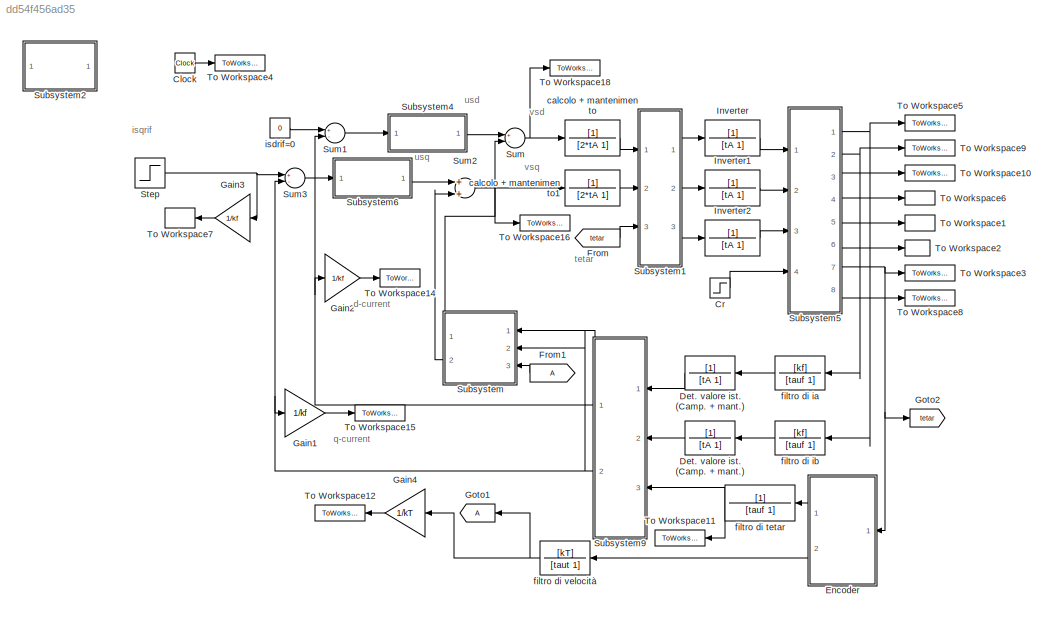
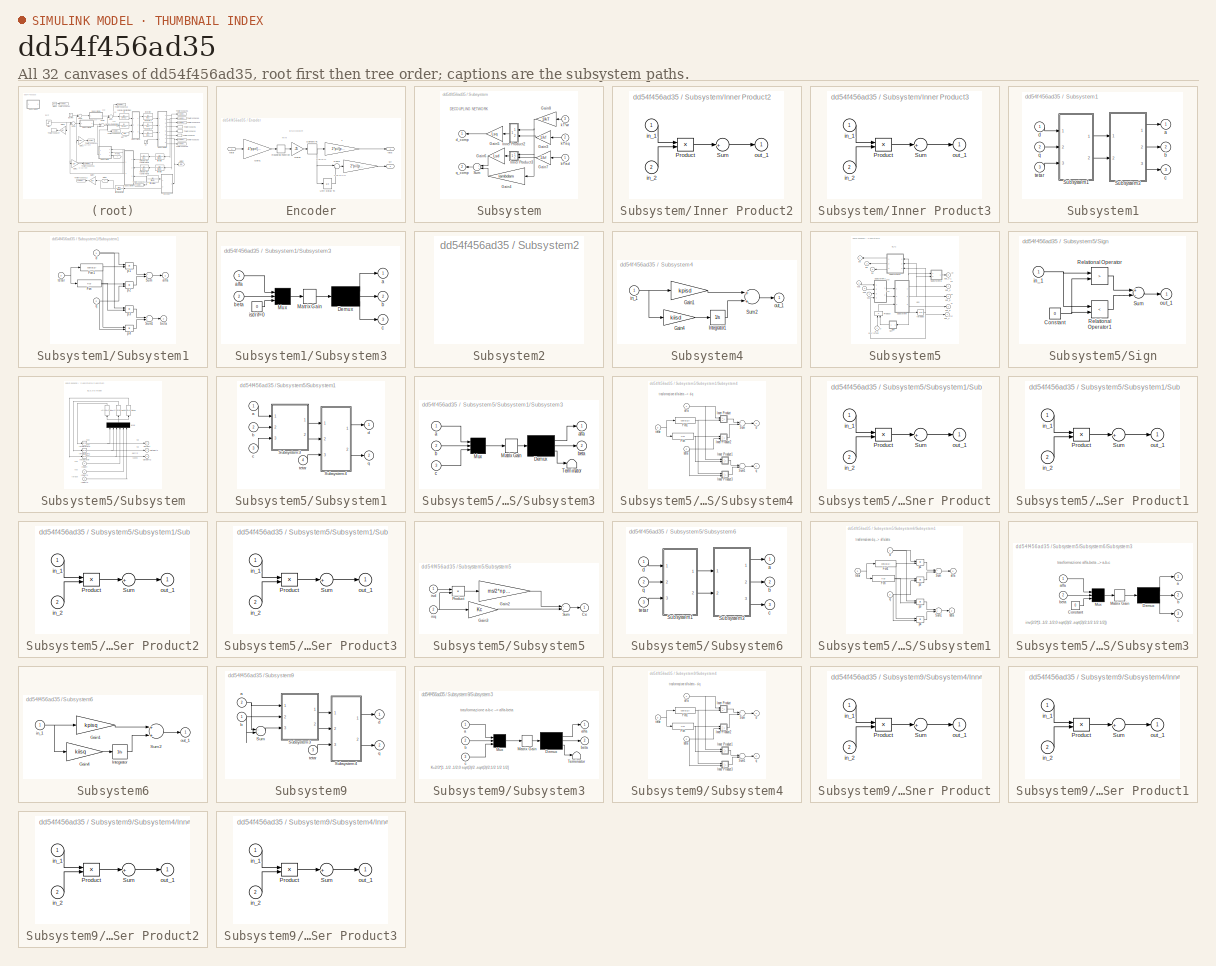
[diagram: thumbnail index - all 32 canvases of the model, root first then tree order]
MODEL slx_dd54f456ad35
KIND model
CONFIG AbsTol = 1e-4
CONFIG EnableMultiTasking = off
CONFIG FixedStep = fixed_step_size
CONFIG MaxStep = .1*Tc
CONFIG MinStep = auto
CONFIG RelTol = 1e-4
CONFIG SampleTimeConstraint = Unconstrained
CONFIG Solver = ode4
CONFIG SolverName = ode4
CONFIG StartTime = 0.0
CONFIG StopTime = 0.02
BLOCK [Clock] Clock
  Decimation = 1
BLOCK [Step] Cr
  After = 0
  SampleTime = 0
  Time = 0
BLOCK [TransferFcn] Det. valore ist. (Camp. + mant.)
  Denominator = [tA 1]
BLOCK [TransferFcn] Det. valore ist. (Camp. + mant.) 
  Denominator = [tA 1]
BLOCK [SubSystem] Encoder
  Ports = [1, 2]
  RequestExecContextInheritance = off
BLOCK [Gain] Encoder/ 
  Gain = 2*pi/(ppr*Tc)
BLOCK [Gain] Encoder/ 1
  Gain = 2*pi/(ppr)
BLOCK [Gain] Encoder/Gain1
  Gain = 4*ppr/(2*pi)
BLOCK [Gain] Encoder/Gain6
  Gain = .25
BLOCK [Rounding] Encoder/Rounding Function
BLOCK [ZeroOrderHold] Encoder/Sample Tc
  SampleTime = Tc
BLOCK [Sum] Encoder/Sum2
  IconShape = round
  Inputs = |+-
  Ports = [2, 1]
BLOCK [UnitDelay] Encoder/Unit Delay Tc
  SampleTime = Tc
BLOCK [Outport] Encoder/teta
  IconDisplay = Port number
BLOCK [Inport] Encoder/tetar
  IconDisplay = Port number
BLOCK [Outport] Encoder/wr
  IconDisplay = Port number
  Port = 2
BLOCK [From] From
  CloseFcn = tagdialog Close
  GotoTag = tetar
  IconDisplay = Signal name
BLOCK [From] From1
  CloseFcn = tagdialog Close
  IconDisplay = Signal name
BLOCK [Gain] Gain1
  Gain = 1/kf
BLOCK [Gain] Gain2
  Gain = 1/kf
BLOCK [Gain] Gain3
  Gain = 1/kf
BLOCK [Gain] Gain4
  Gain = 1/kT
BLOCK [Goto] Goto1
BLOCK [Goto] Goto2
  GotoTag = tetar
BLOCK [TransferFcn] Inverter
  Denominator = [tA 1]
BLOCK [TransferFcn] Inverter1
  Denominator = [tA 1]
BLOCK [TransferFcn] Inverter2
  Denominator = [tA 1]
BLOCK [Step] Step
  After = 0.6*kf
  SampleTime = 0
  Time = 0
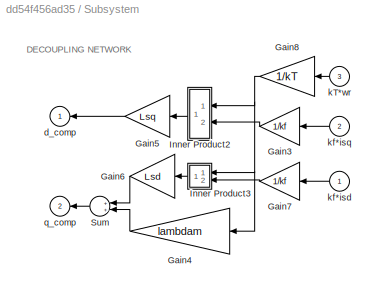
BLOCK [SubSystem] Subsystem
  Ports = [3, 2]
  RequestExecContextInheritance = off
  ShowPortLabels = none
BLOCK [Gain] Subsystem/Gain3
  Gain = 1/kf
BLOCK [Gain] Subsystem/Gain4
  Gain = lambdam
BLOCK [Gain] Subsystem/Gain5
  Gain = Lsq
BLOCK [Gain] Subsystem/Gain6
  Gain = Lsd
BLOCK [Gain] Subsystem/Gain7
  Gain = 1/kf
BLOCK [Gain] Subsystem/Gain8
  Gain = 1/kT
BLOCK [SubSystem] Subsystem/Inner Product2
  Ports = [2, 1]
  RequestExecContextInheritance = off
  ShowPortLabels = none
BLOCK [Product] Subsystem/Inner Product2/Product
  Ports = [2, 1]
  RndMeth = Floor
BLOCK [Sum] Subsystem/Inner Product2/Sum
  Inputs = +
  Ports = [1, 1]
BLOCK [Inport] Subsystem/Inner Product2/in_1
  IconDisplay = Port number
BLOCK [Inport] Subsystem/Inner Product2/in_2
  IconDisplay = Port number
  Port = 2
BLOCK [Outport] Subsystem/Inner Product2/out_1
  IconDisplay = Port number
BLOCK [SubSystem] Subsystem/Inner Product3
  Ports = [2, 1]
  RequestExecContextInheritance = off
  ShowPortLabels = none
BLOCK [Product] Subsystem/Inner Product3/Product
  Ports = [2, 1]
  RndMeth = Floor
BLOCK [Sum] Subsystem/Inner Product3/Sum
  Inputs = +
  Ports = [1, 1]
BLOCK [Inport] Subsystem/Inner Product3/in_1
  IconDisplay = Port number
BLOCK [Inport] Subsystem/Inner Product3/in_2
  IconDisplay = Port number
  Port = 2
BLOCK [Outport] Subsystem/Inner Product3/out_1
  IconDisplay = Port number
BLOCK [Sum] Subsystem/Sum
  Ports = [2, 1]
BLOCK [Outport] Subsystem/d_comp
  IconDisplay = Port number
BLOCK [Inport] Subsystem/kT*wr
  IconDisplay = Port number
  Port = 3
BLOCK [Inport] Subsystem/kf*isd
  IconDisplay = Port number
BLOCK [Inport] Subsystem/kf*isq
  IconDisplay = Port number
  Port = 2
BLOCK [Outport] Subsystem/q_comp
  IconDisplay = Port number
  Port = 2
BLOCK [SubSystem] Subsystem1
  Ports = [3, 3]
  RequestExecContextInheritance = off
  ShowPortLabels = none
BLOCK [SubSystem] Subsystem1/Subsystem1
  Ports = [3, 2]
  RequestExecContextInheritance = off
  ShowPortLabels = none
BLOCK [Fcn] Subsystem1/Subsystem1/Fcn
BLOCK [Fcn] Subsystem1/Subsystem1/Fcn1
  Expr = cos(u[1])
BLOCK [Sum] Subsystem1/Subsystem1/Sum
  Inputs = +-
  Ports = [2, 1]
BLOCK [Sum] Subsystem1/Subsystem1/Sum1
  Ports = [2, 1]
BLOCK [Outport] Subsystem1/Subsystem1/alfa
  IconDisplay = Port number
BLOCK [Outport] Subsystem1/Subsystem1/beta
  IconDisplay = Port number
  Port = 2
BLOCK [Inport] Subsystem1/Subsystem1/d
  IconDisplay = Port number
BLOCK [Product] Subsystem1/Subsystem1/p1
  Ports = [2, 1]
  RndMeth = Floor
BLOCK [Product] Subsystem1/Subsystem1/p2
  Ports = [2, 1]
  RndMeth = Floor
BLOCK [Product] Subsystem1/Subsystem1/p3
  Ports = [2, 1]
  RndMeth = Floor
BLOCK [Product] Subsystem1/Subsystem1/p4
  Ports = [2, 1]
  RndMeth = Floor
BLOCK [Inport] Subsystem1/Subsystem1/q
  IconDisplay = Port number
  Port = 2
BLOCK [Inport] Subsystem1/Subsystem1/tetar 
  IconDisplay = Port number
  Port = 3
BLOCK [SubSystem] Subsystem1/Subsystem3
  Ports = [2, 3]
  RequestExecContextInheritance = off
  ShowPortLabels = none
BLOCK [Demux] Subsystem1/Subsystem3/Demux
  Outputs = 3
  Ports = [1, 3]
BLOCK [StateSpace] Subsystem1/Subsystem3/Matrix Gain
  A = []
  B = []
  C = []
  D = K
  InitialCondition = 0
  Ports = [1, 1]
BLOCK [Mux] Subsystem1/Subsystem3/Mux
  Inputs = 3
  Ports = [3, 1]
BLOCK [Outport] Subsystem1/Subsystem3/a
  IconDisplay = Port number
BLOCK [Inport] Subsystem1/Subsystem3/alfa
  IconDisplay = Port number
BLOCK [Outport] Subsystem1/Subsystem3/b
  IconDisplay = Port number
  Port = 2
BLOCK [Inport] Subsystem1/Subsystem3/beta
  IconDisplay = Port number
  Port = 2
BLOCK [Outport] Subsystem1/Subsystem3/c 
  IconDisplay = Port number
  Port = 3
BLOCK [Constant] Subsystem1/Subsystem3/isdrif=0
  Value = 0
BLOCK [Outport] Subsystem1/a
  IconDisplay = Port number
BLOCK [Outport] Subsystem1/b
  IconDisplay = Port number
  Port = 2
BLOCK [Outport] Subsystem1/c
  IconDisplay = Port number
  Port = 3
BLOCK [Inport] Subsystem1/d
  IconDisplay = Port number
BLOCK [Inport] Subsystem1/q
  IconDisplay = Port number
  Port = 2
BLOCK [Inport] Subsystem1/tetar
  IconDisplay = Port number
  Port = 3
BLOCK [SubSystem] Subsystem2
  OpenFcn = BLAC_1d
  Ports = []
  RequestExecContextInheritance = off
  ShowPortLabels = none
BLOCK [SubSystem] Subsystem4
  Ports = [1, 1]
  RequestExecContextInheritance = off
  ShowPortLabels = none
BLOCK [Gain] Subsystem4/Gain1
  Gain = kpisd
BLOCK [Gain] Subsystem4/Gain4
  Gain = kiisd
BLOCK [Integrator] Subsystem4/Integrator1
  Ports = [1, 1]
BLOCK [Sum] Subsystem4/Sum2
  Ports = [2, 1]
BLOCK [Inport] Subsystem4/in_1
  IconDisplay = Port number
BLOCK [Outport] Subsystem4/out_1
  IconDisplay = Port number
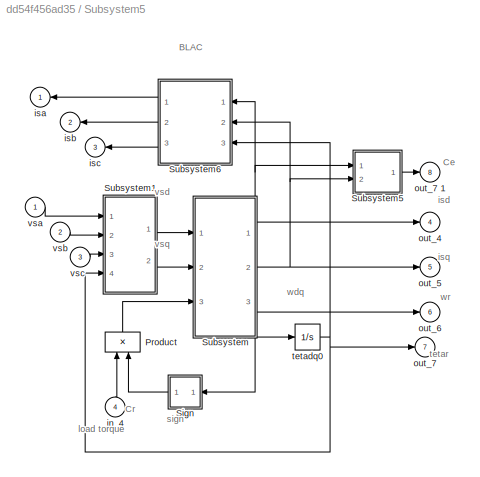
BLOCK [SubSystem] Subsystem5
  Ports = [4, 8]
  RequestExecContextInheritance = off
  ShowPortLabels = none
BLOCK [Product] Subsystem5/Product
  Ports = [2, 1]
  RndMeth = Floor
BLOCK [SubSystem] Subsystem5/Sign
  Ports = [1, 1]
  RequestExecContextInheritance = off
  ShowPortLabels = none
BLOCK [Constant] Subsystem5/Sign/Constant
  Value = 0
BLOCK [RelationalOperator] Subsystem5/Sign/Relational Operator
  Operator = >
  Ports = [2, 1]
BLOCK [RelationalOperator] Subsystem5/Sign/Relational Operator1
  Operator = <
  Ports = [2, 1]
BLOCK [Sum] Subsystem5/Sign/Sum
  Inputs = +-
  Ports = [2, 1]
BLOCK [Inport] Subsystem5/Sign/in_1
  IconDisplay = Port number
BLOCK [Outport] Subsystem5/Sign/out_1
  IconDisplay = Port number
BLOCK [SubSystem] Subsystem5/Subsystem
  Ports = [3, 3]
  RequestExecContextInheritance = off
  ShowPortLabels = none
BLOCK [Fcn] Subsystem5/Subsystem/Fcn
  Expr = A1*u[1]+A2*u[2]*u[3]+A3*u[4]
BLOCK [Fcn] Subsystem5/Subsystem/Fcn1
  Expr = A4*u[1]*u[3]+A5*u[2]+A6*u[3]+A7*u[5]
BLOCK [Fcn] Subsystem5/Subsystem/Fcn2
  Expr = A8*u[2]+A9*u[1]*u[2]+A10*u[3]+A11*u[6]
BLOCK [Inport] Subsystem5/Subsystem/Inport
  IconDisplay = Port number
BLOCK [Inport] Subsystem5/Subsystem/Inport1
  IconDisplay = Port number
  Port = 2
BLOCK [Inport] Subsystem5/Subsystem/Inport2
  IconDisplay = Port number
  Port = 3
BLOCK [Integrator] Subsystem5/Subsystem/Integrator
  InitialCondition = wdq0
  Ports = [1, 1]
BLOCK [Integrator] Subsystem5/Subsystem/Integrator1
  InitialCondition = isq0
  Ports = [1, 1]
BLOCK [Integrator] Subsystem5/Subsystem/Integrator2
  InitialCondition = isd0
  Ports = [1, 1]
BLOCK [Mux] Subsystem5/Subsystem/Mux
  Inputs = 6
  Ports = [6, 1]
BLOCK [Outport] Subsystem5/Subsystem/Outport
  IconDisplay = Port number
BLOCK [Outport] Subsystem5/Subsystem/Outport1
  IconDisplay = Port number
  Port = 2
BLOCK [Outport] Subsystem5/Subsystem/Outport2
  IconDisplay = Port number
  Port = 3
BLOCK [SubSystem] Subsystem5/Subsystem1
  Ports = [4, 2]
  RequestExecContextInheritance = off
  ShowPortLabels = none
BLOCK [SubSystem] Subsystem5/Subsystem1/Subsystem3
  Ports = [3, 2]
  RequestExecContextInheritance = off
  ShowPortLabels = none
BLOCK [Demux] Subsystem5/Subsystem1/Subsystem3/Demux
  Outputs = 3
  Ports = [1, 3]
BLOCK [StateSpace] Subsystem5/Subsystem1/Subsystem3/Matrix Gain
  A = []
  B = []
  C = []
  D = K
  InitialCondition = 0
  Ports = [1, 1]
BLOCK [Mux] Subsystem5/Subsystem1/Subsystem3/Mux
  Inputs = 3
  Ports = [3, 1]
BLOCK [Terminator] Subsystem5/Subsystem1/Subsystem3/Terminator
BLOCK [Inport] Subsystem5/Subsystem1/Subsystem3/a
  IconDisplay = Port number
BLOCK [Outport] Subsystem5/Subsystem1/Subsystem3/alfa
  IconDisplay = Port number
BLOCK [Inport] Subsystem5/Subsystem1/Subsystem3/b
  IconDisplay = Port number
  Port = 2
BLOCK [Outport] Subsystem5/Subsystem1/Subsystem3/beta
  IconDisplay = Port number
  Port = 2
BLOCK [Inport] Subsystem5/Subsystem1/Subsystem3/c
  IconDisplay = Port number
  Port = 3
BLOCK [SubSystem] Subsystem5/Subsystem1/Subsystem4
  Ports = [3, 2]
  RequestExecContextInheritance = off
  ShowPortLabels = none
BLOCK [Fcn] Subsystem5/Subsystem1/Subsystem4/Fcn
BLOCK [Fcn] Subsystem5/Subsystem1/Subsystem4/Fcn1
  Expr = cos(u[1])
BLOCK [SubSystem] Subsystem5/Subsystem1/Subsystem4/Inner Product
  Ports = [2, 1]
  RequestExecContextInheritance = off
  ShowPortLabels = none
BLOCK [Product] Subsystem5/Subsystem1/Subsystem4/Inner Product/Product
  Ports = [2, 1]
  RndMeth = Floor
BLOCK [Sum] Subsystem5/Subsystem1/Subsystem4/Inner Product/Sum
  Inputs = +
  Ports = [1, 1]
BLOCK [Inport] Subsystem5/Subsystem1/Subsystem4/Inner Product/in_1
  IconDisplay = Port number
BLOCK [Inport] Subsystem5/Subsystem1/Subsystem4/Inner Product/in_2
  IconDisplay = Port number
  Port = 2
BLOCK [Outport] Subsystem5/Subsystem1/Subsystem4/Inner Product/out_1
  IconDisplay = Port number
BLOCK [SubSystem] Subsystem5/Subsystem1/Subsystem4/Inner Product1
  Ports = [2, 1]
  RequestExecContextInheritance = off
  ShowPortLabels = none
BLOCK [Product] Subsystem5/Subsystem1/Subsystem4/Inner Product1/Product
  Ports = [2, 1]
  RndMeth = Floor
BLOCK [Sum] Subsystem5/Subsystem1/Subsystem4/Inner Product1/Sum
  Inputs = +
  Ports = [1, 1]
BLOCK [Inport] Subsystem5/Subsystem1/Subsystem4/Inner Product1/in_1
  IconDisplay = Port number
BLOCK [Inport] Subsystem5/Subsystem1/Subsystem4/Inner Product1/in_2
  IconDisplay = Port number
  Port = 2
BLOCK [Outport] Subsystem5/Subsystem1/Subsystem4/Inner Product1/out_1
  IconDisplay = Port number
BLOCK [SubSystem] Subsystem5/Subsystem1/Subsystem4/Inner Product2
  Ports = [2, 1]
  RequestExecContextInheritance = off
  ShowPortLabels = none
BLOCK [Product] Subsystem5/Subsystem1/Subsystem4/Inner Product2/Product
  Ports = [2, 1]
  RndMeth = Floor
BLOCK [Sum] Subsystem5/Subsystem1/Subsystem4/Inner Product2/Sum
  Inputs = +
  Ports = [1, 1]
BLOCK [Inport] Subsystem5/Subsystem1/Subsystem4/Inner Product2/in_1
  IconDisplay = Port number
BLOCK [Inport] Subsystem5/Subsystem1/Subsystem4/Inner Product2/in_2
  IconDisplay = Port number
  Port = 2
BLOCK [Outport] Subsystem5/Subsystem1/Subsystem4/Inner Product2/out_1
  IconDisplay = Port number
BLOCK [SubSystem] Subsystem5/Subsystem1/Subsystem4/Inner Product3
  Ports = [2, 1]
  RequestExecContextInheritance = off
  ShowPortLabels = none
BLOCK [Product] Subsystem5/Subsystem1/Subsystem4/Inner Product3/Product
  Ports = [2, 1]
  RndMeth = Floor
BLOCK [Sum] Subsystem5/Subsystem1/Subsystem4/Inner Product3/Sum
  Inputs = +
  Ports = [1, 1]
BLOCK [Inport] Subsystem5/Subsystem1/Subsystem4/Inner Product3/in_1
  IconDisplay = Port number
BLOCK [Inport] Subsystem5/Subsystem1/Subsystem4/Inner Product3/in_2
  IconDisplay = Port number
  Port = 2
BLOCK [Outport] Subsystem5/Subsystem1/Subsystem4/Inner Product3/out_1
  IconDisplay = Port number
BLOCK [Sum] Subsystem5/Subsystem1/Subsystem4/Sum
  Ports = [2, 1]
BLOCK [Sum] Subsystem5/Subsystem1/Subsystem4/Sum1
  Inputs = -+
  Ports = [2, 1]
BLOCK [Inport] Subsystem5/Subsystem1/Subsystem4/alfa
  IconDisplay = Port number
BLOCK [Inport] Subsystem5/Subsystem1/Subsystem4/beta
  IconDisplay = Port number
  Port = 2
BLOCK [Outport] Subsystem5/Subsystem1/Subsystem4/d
  IconDisplay = Port number
BLOCK [Outport] Subsystem5/Subsystem1/Subsystem4/q
  IconDisplay = Port number
  Port = 2
BLOCK [Inport] Subsystem5/Subsystem1/Subsystem4/tetar 
  IconDisplay = Port number
  Port = 3
BLOCK [Inport] Subsystem5/Subsystem1/a
  IconDisplay = Port number
BLOCK [Inport] Subsystem5/Subsystem1/b
  IconDisplay = Port number
  Port = 2
BLOCK [Inport] Subsystem5/Subsystem1/c
  IconDisplay = Port number
  Port = 3
BLOCK [Outport] Subsystem5/Subsystem1/d
  IconDisplay = Port number
BLOCK [Outport] Subsystem5/Subsystem1/q
  IconDisplay = Port number
  Port = 2
BLOCK [Inport] Subsystem5/Subsystem1/tetar
  IconDisplay = Port number
  Port = 4
BLOCK [SubSystem] Subsystem5/Subsystem5
  Ports = [2, 1]
  RequestExecContextInheritance = off
  ShowPortLabels = none
BLOCK [Outport] Subsystem5/Subsystem5/Ce
  IconDisplay = Port number
BLOCK [Gain] Subsystem5/Subsystem5/Gain2
  Gain = ms/2*np*(Lsd-Lsq)
BLOCK [Gain] Subsystem5/Subsystem5/Gain3
  Gain = Kc
BLOCK [Product] Subsystem5/Subsystem5/Product
  Ports = [2, 1]
  RndMeth = Floor
BLOCK [Sum] Subsystem5/Subsystem5/Sum
  Ports = [2, 1]
BLOCK [Inport] Subsystem5/Subsystem5/isd
  IconDisplay = Port number
BLOCK [Inport] Subsystem5/Subsystem5/isq
  IconDisplay = Port number
  Port = 2
BLOCK [SubSystem] Subsystem5/Subsystem6
  Ports = [3, 3]
  RequestExecContextInheritance = off
  ShowPortLabels = none
BLOCK [SubSystem] Subsystem5/Subsystem6/Subsystem1
  Ports = [3, 2]
  RequestExecContextInheritance = off
  ShowPortLabels = none
BLOCK [Fcn] Subsystem5/Subsystem6/Subsystem1/Fcn
BLOCK [Fcn] Subsystem5/Subsystem6/Subsystem1/Fcn1
  Expr = cos(u[1])
BLOCK [Sum] Subsystem5/Subsystem6/Subsystem1/Sum
  Inputs = +-
  Ports = [2, 1]
BLOCK [Sum] Subsystem5/Subsystem6/Subsystem1/Sum1
  Ports = [2, 1]
BLOCK [Outport] Subsystem5/Subsystem6/Subsystem1/alfa
  IconDisplay = Port number
BLOCK [Outport] Subsystem5/Subsystem6/Subsystem1/beta
  IconDisplay = Port number
  Port = 2
BLOCK [Inport] Subsystem5/Subsystem6/Subsystem1/d
  IconDisplay = Port number
BLOCK [Product] Subsystem5/Subsystem6/Subsystem1/p1
  Ports = [2, 1]
  RndMeth = Floor
BLOCK [Product] Subsystem5/Subsystem6/Subsystem1/p2
  Ports = [2, 1]
  RndMeth = Floor
BLOCK [Product] Subsystem5/Subsystem6/Subsystem1/p3
  Ports = [2, 1]
  RndMeth = Floor
BLOCK [Product] Subsystem5/Subsystem6/Subsystem1/p4
  Ports = [2, 1]
  RndMeth = Floor
BLOCK [Inport] Subsystem5/Subsystem6/Subsystem1/q
  IconDisplay = Port number
  Port = 2
BLOCK [Inport] Subsystem5/Subsystem6/Subsystem1/tetar 
  IconDisplay = Port number
  Port = 3
BLOCK [SubSystem] Subsystem5/Subsystem6/Subsystem3
  Ports = [2, 3]
  RequestExecContextInheritance = off
  ShowPortLabels = none
BLOCK [Constant] Subsystem5/Subsystem6/Subsystem3/Constant
  Value = 0
BLOCK [Demux] Subsystem5/Subsystem6/Subsystem3/Demux
  Outputs = 3
  Ports = [1, 3]
BLOCK [StateSpace] Subsystem5/Subsystem6/Subsystem3/Matrix Gain
  A = []
  B = []
  C = []
  D = K
  InitialCondition = 0
  Ports = [1, 1]
BLOCK [Mux] Subsystem5/Subsystem6/Subsystem3/Mux
  Inputs = 3
  Ports = [3, 1]
BLOCK [Outport] Subsystem5/Subsystem6/Subsystem3/a
  IconDisplay = Port number
BLOCK [Inport] Subsystem5/Subsystem6/Subsystem3/alfa
  IconDisplay = Port number
BLOCK [Outport] Subsystem5/Subsystem6/Subsystem3/b
  IconDisplay = Port number
  Port = 2
BLOCK [Inport] Subsystem5/Subsystem6/Subsystem3/beta
  IconDisplay = Port number
  Port = 2
BLOCK [Outport] Subsystem5/Subsystem6/Subsystem3/c 
  IconDisplay = Port number
  Port = 3
BLOCK [Outport] Subsystem5/Subsystem6/a
  IconDisplay = Port number
BLOCK [Outport] Subsystem5/Subsystem6/b
  IconDisplay = Port number
  Port = 2
BLOCK [Outport] Subsystem5/Subsystem6/c
  IconDisplay = Port number
  Port = 3
BLOCK [Inport] Subsystem5/Subsystem6/d
  IconDisplay = Port number
BLOCK [Inport] Subsystem5/Subsystem6/q
  IconDisplay = Port number
  Port = 2
BLOCK [Inport] Subsystem5/Subsystem6/tetar
  IconDisplay = Port number
  Port = 3
BLOCK [Inport] Subsystem5/in_4
  IconDisplay = Port number
  Port = 4
BLOCK [Outport] Subsystem5/isa
  IconDisplay = Port number
BLOCK [Outport] Subsystem5/isb
  IconDisplay = Port number
  Port = 2
BLOCK [Outport] Subsystem5/isc
  IconDisplay = Port number
  Port = 3
BLOCK [Outport] Subsystem5/out_4
  IconDisplay = Port number
  Port = 4
BLOCK [Outport] Subsystem5/out_5
  IconDisplay = Port number
  Port = 5
BLOCK [Outport] Subsystem5/out_6
  IconDisplay = Port number
  Port = 6
BLOCK [Outport] Subsystem5/out_7 
  IconDisplay = Port number
  Port = 7
BLOCK [Outport] Subsystem5/out_7 1
  IconDisplay = Port number
  Port = 8
BLOCK [Integrator] Subsystem5/tetadq0
  InitialCondition = tetadq0
  Ports = [1, 1]
BLOCK [Inport] Subsystem5/vsa
  IconDisplay = Port number
BLOCK [Inport] Subsystem5/vsb
  IconDisplay = Port number
  Port = 2
BLOCK [Inport] Subsystem5/vsc
  IconDisplay = Port number
  Port = 3
BLOCK [SubSystem] Subsystem6
  Ports = [1, 1]
  RequestExecContextInheritance = off
  ShowPortLabels = none
BLOCK [Gain] Subsystem6/Gain1
  Gain = kpisq
BLOCK [Gain] Subsystem6/Gain4
  Gain = kiisq
BLOCK [Integrator] Subsystem6/Integrator
  Ports = [1, 1]
BLOCK [Sum] Subsystem6/Sum2
  Ports = [2, 1]
BLOCK [Inport] Subsystem6/in_1
  IconDisplay = Port number
BLOCK [Outport] Subsystem6/out_1
  IconDisplay = Port number
BLOCK [SubSystem] Subsystem9
  Ports = [3, 2]
  RequestExecContextInheritance = off
  ShowPortLabels = none
BLOCK [SubSystem] Subsystem9/Subsystem3
  Ports = [3, 2]
  RequestExecContextInheritance = off
  ShowPortLabels = none
BLOCK [Demux] Subsystem9/Subsystem3/Demux
  Outputs = 3
  Ports = [1, 3]
BLOCK [StateSpace] Subsystem9/Subsystem3/Matrix Gain
  A = []
  B = []
  C = []
  D = K
  InitialCondition = 0
  Ports = [1, 1]
BLOCK [Mux] Subsystem9/Subsystem3/Mux
  Inputs = 3
  Ports = [3, 1]
BLOCK [Terminator] Subsystem9/Subsystem3/Terminator
BLOCK [Inport] Subsystem9/Subsystem3/a
  IconDisplay = Port number
BLOCK [Outport] Subsystem9/Subsystem3/alfa
  IconDisplay = Port number
BLOCK [Inport] Subsystem9/Subsystem3/b
  IconDisplay = Port number
  Port = 2
BLOCK [Outport] Subsystem9/Subsystem3/beta
  IconDisplay = Port number
  Port = 2
BLOCK [Inport] Subsystem9/Subsystem3/c
  IconDisplay = Port number
  Port = 3
BLOCK [SubSystem] Subsystem9/Subsystem4
  Ports = [3, 2]
  RequestExecContextInheritance = off
  ShowPortLabels = none
BLOCK [Fcn] Subsystem9/Subsystem4/Fcn
BLOCK [Fcn] Subsystem9/Subsystem4/Fcn1
  Expr = cos(u[1])
BLOCK [SubSystem] Subsystem9/Subsystem4/Inner Product
  Ports = [2, 1]
  RequestExecContextInheritance = off
  ShowPortLabels = none
BLOCK [Product] Subsystem9/Subsystem4/Inner Product/Product
  Ports = [2, 1]
  RndMeth = Floor
BLOCK [Sum] Subsystem9/Subsystem4/Inner Product/Sum
  Inputs = +
  Ports = [1, 1]
BLOCK [Inport] Subsystem9/Subsystem4/Inner Product/in_1
  IconDisplay = Port number
BLOCK [Inport] Subsystem9/Subsystem4/Inner Product/in_2
  IconDisplay = Port number
  Port = 2
BLOCK [Outport] Subsystem9/Subsystem4/Inner Product/out_1
  IconDisplay = Port number
BLOCK [SubSystem] Subsystem9/Subsystem4/Inner Product1
  Ports = [2, 1]
  RequestExecContextInheritance = off
  ShowPortLabels = none
BLOCK [Product] Subsystem9/Subsystem4/Inner Product1/Product
  Ports = [2, 1]
  RndMeth = Floor
BLOCK [Sum] Subsystem9/Subsystem4/Inner Product1/Sum
  Inputs = +
  Ports = [1, 1]
BLOCK [Inport] Subsystem9/Subsystem4/Inner Product1/in_1
  IconDisplay = Port number
BLOCK [Inport] Subsystem9/Subsystem4/Inner Product1/in_2
  IconDisplay = Port number
  Port = 2
BLOCK [Outport] Subsystem9/Subsystem4/Inner Product1/out_1
  IconDisplay = Port number
BLOCK [SubSystem] Subsystem9/Subsystem4/Inner Product2
  Ports = [2, 1]
  RequestExecContextInheritance = off
  ShowPortLabels = none
BLOCK [Product] Subsystem9/Subsystem4/Inner Product2/Product
  Ports = [2, 1]
  RndMeth = Floor
BLOCK [Sum] Subsystem9/Subsystem4/Inner Product2/Sum
  Inputs = +
  Ports = [1, 1]
BLOCK [Inport] Subsystem9/Subsystem4/Inner Product2/in_1
  IconDisplay = Port number
BLOCK [Inport] Subsystem9/Subsystem4/Inner Product2/in_2
  IconDisplay = Port number
  Port = 2
BLOCK [Outport] Subsystem9/Subsystem4/Inner Product2/out_1
  IconDisplay = Port number
BLOCK [SubSystem] Subsystem9/Subsystem4/Inner Product3
  Ports = [2, 1]
  RequestExecContextInheritance = off
  ShowPortLabels = none
BLOCK [Product] Subsystem9/Subsystem4/Inner Product3/Product
  Ports = [2, 1]
  RndMeth = Floor
BLOCK [Sum] Subsystem9/Subsystem4/Inner Product3/Sum
  Inputs = +
  Ports = [1, 1]
BLOCK [Inport] Subsystem9/Subsystem4/Inner Product3/in_1
  IconDisplay = Port number
BLOCK [Inport] Subsystem9/Subsystem4/Inner Product3/in_2
  IconDisplay = Port number
  Port = 2
BLOCK [Outport] Subsystem9/Subsystem4/Inner Product3/out_1
  IconDisplay = Port number
BLOCK [Sum] Subsystem9/Subsystem4/Sum
  Ports = [2, 1]
BLOCK [Sum] Subsystem9/Subsystem4/Sum1
  Inputs = -+
  Ports = [2, 1]
BLOCK [Inport] Subsystem9/Subsystem4/alfa
  IconDisplay = Port number
BLOCK [Inport] Subsystem9/Subsystem4/beta
  IconDisplay = Port number
  Port = 2
BLOCK [Outport] Subsystem9/Subsystem4/d
  IconDisplay = Port number
BLOCK [Outport] Subsystem9/Subsystem4/q
  IconDisplay = Port number
  Port = 2
BLOCK [Inport] Subsystem9/Subsystem4/tetar 
  IconDisplay = Port number
  Port = 3
BLOCK [Sum] Subsystem9/Sum
  IconShape = round
  Inputs = --
  Ports = [2, 1]
BLOCK [Inport] Subsystem9/a
  IconDisplay = Port number
  Port = 2
BLOCK [Inport] Subsystem9/b
  IconDisplay = Port number
BLOCK [Outport] Subsystem9/d
  IconDisplay = Port number
BLOCK [Outport] Subsystem9/q
  IconDisplay = Port number
  Port = 2
BLOCK [Inport] Subsystem9/tetar
  IconDisplay = Port number
  Port = 3
BLOCK [Sum] Sum
  Inputs = +-
  Ports = [2, 1]
BLOCK [Sum] Sum1
  Inputs = +-
  Ports = [2, 1]
BLOCK [Sum] Sum2
  Ports = [2, 1]
BLOCK [Sum] Sum3
  Inputs = +-
  Ports = [2, 1]
BLOCK [ToWorkspace] To Workspace1
  MaxDataPoints = 1e6
  OpenFcn = figure(5);                                     \nplot(ts,isq,'k',ts,isqr,'--k','linewidth',2);  \nxlabel('time [s]');                            \nylabel('isq [A]');title('BLAC motor q-current')
  Ports = [1]
  VariableName = isq
BLOCK [ToWorkspace] To Workspace10
  MaxDataPoints = 1e6
  OpenFcn = figure(4);plot(ts,isc);xlabel('time [s]');ylabel('isc [A]');title('BLAC motor phase current')
  Ports = [1]
  VariableName = isc
BLOCK [ToWorkspace] To Workspace11
  MaxDataPoints = inf
  Ports = [1]
  VariableName = tetam
BLOCK [ToWorkspace] To Workspace12
  MaxDataPoints = inf
  Ports = [1]
  VariableName = wm
BLOCK [ToWorkspace] To Workspace14
  MaxDataPoints = inf
  Ports = [1]
  VariableName = isdm
BLOCK [ToWorkspace] To Workspace15
  MaxDataPoints = inf
  Ports = [1]
  VariableName = isqm
BLOCK [ToWorkspace] To Workspace16
  MaxDataPoints = inf
  Ports = [1]
  VariableName = vsq
BLOCK [ToWorkspace] To Workspace18
  MaxDataPoints = inf
  Ports = [1]
  VariableName = vsd
BLOCK [ToWorkspace] To Workspace2
  MaxDataPoints = 1e6
  OpenFcn = figure(1);                                  \nplot(ts,wref,'--k',ts,wr,'k','linewidth',2);\nxlabel('time [s]');                         \nylabel('speed [rad/s]');                    \ntitle('BLAC motor speed response')
  Ports = [1]
  VariableName = wr
BLOCK [ToWorkspace] To Workspace3
  MaxDataPoints = inf
  Ports = [1]
  VariableName = tetar
BLOCK [ToWorkspace] To Workspace4
  MaxDataPoints = inf
  Ports = [1]
  VariableName = ts
BLOCK [ToWorkspace] To Workspace5
  MaxDataPoints = 1e6
  OpenFcn = figure(2);plot(ts,isa);xlabel('time [s]');ylabel('isa [A]');title('BLAC motor phase current')
  Ports = [1]
  VariableName = isa
BLOCK [ToWorkspace] To Workspace6
  MaxDataPoints = 1e6
  OpenFcn = figure(5);plot(ts,isd,'linewidth',2);xlabel('time [s]');ylabel('isd [A]');title('BLAC motor d-current')\naxis([0 0.5 -5 20])
  Ports = [1]
  VariableName = isd
BLOCK [ToWorkspace] To Workspace7
  MaxDataPoints = 1e6
  OpenFcn = figure(5);plot(ts,isq);xlabel('time [s]');ylabel('isq [A]');title('BLAC motor q-current')
  Ports = [1]
  VariableName = isqr
BLOCK [ToWorkspace] To Workspace8
  MaxDataPoints = 1e6
  OpenFcn = figure(7);plot(ts,torque,'k','linewidth',2);\nxlabel('time [s]');                         \nylabel('Electromagnetic torque [Nm]');      \ntitle('BLAC motor electromagnetic torque')
  Ports = [1]
  VariableName = torque
BLOCK [ToWorkspace] To Workspace9
  MaxDataPoints = 1e6
  OpenFcn = figure(3);plot(ts,isb);xlabel('time [s]');ylabel('isb [A]');title('BLAC motor phase current')
  Ports = [1]
  VariableName = isb
BLOCK [TransferFcn] calcolo + mantenimento
  Denominator = [2*tA 1]
BLOCK [TransferFcn] calcolo + mantenimento1
  Denominator = [2*tA 1]
BLOCK [TransferFcn] filtro di ia
  Denominator = [tauf 1]
  Numerator = [kf]
BLOCK [TransferFcn] filtro di ib
  Denominator = [tauf 1]
  Numerator = [kf]
BLOCK [TransferFcn] filtro di tetar
  Denominator = [tauf 1]
BLOCK [TransferFcn] filtro di velocità
  Denominator = [taut 1]
  Numerator = [kT]
BLOCK [Constant] isdrif=0
  Value = 0
ANNOTATION (root): d-current
ANNOTATION (root): isqrif
ANNOTATION (root): q-current
ANNOTATION (root): tetar
ANNOTATION (root): usd
ANNOTATION (root): usq
ANNOTATION (root): vsd
ANNOTATION (root): vsq
ANNOTATION Encoder: 0.25.ni(n)
ANNOTATION Encoder: 0.25.ni(n-1)
ANNOTATION Encoder: ENCODER
ANNOTATION Encoder: ni(n)
ANNOTATION Subsystem: DECOUPLING NETWORK
ANNOTATION Subsystem5: BLAC
ANNOTATION Subsystem5: Ce
ANNOTATION Subsystem5: Cr
ANNOTATION Subsystem5: isd
ANNOTATION Subsystem5: isq
ANNOTATION Subsystem5: load torque
ANNOTATION Subsystem5: sign
ANNOTATION Subsystem5: tetar
ANNOTATION Subsystem5: vsd
ANNOTATION Subsystem5: vsq
ANNOTATION Subsystem5: wdq
ANNOTATION Subsystem5: wr
ANNOTATION Subsystem5/Subsystem: BLAC d-q model
ANNOTATION Subsystem5/Subsystem: electric speed
ANNOTATION Subsystem5/Subsystem: isd
ANNOTATION Subsystem5/Subsystem: isd0
ANNOTATION Subsystem5/Subsystem: isq
ANNOTATION Subsystem5/Subsystem: isq0
ANNOTATION Subsystem5/Subsystem: torque
ANNOTATION Subsystem5/Subsystem: vsd
ANNOTATION Subsystem5/Subsystem: vsq
ANNOTATION Subsystem5/Subsystem: wdq0
ANNOTATION Subsystem5/Subsystem1/Subsystem4: trasformazione alfa-beta --> d-q
ANNOTATION Subsystem5/Subsystem6/Subsystem1: trasformazione d-q --> alfa-beta
ANNOTATION Subsystem5/Subsystem6/Subsystem3: inv(2/3*[1 -1/2 -1/2;0 sqrt(3)/2 -sqrt(3)/2;1/2 1/2 1/2])
ANNOTATION Subsystem5/Subsystem6/Subsystem3: trasformazione alfa-beta --> a-b-c
ANNOTATION Subsystem9/Subsystem3: K=2/3*[1 -1/2 -1/2;0 sqrt(3)/2 -sqrt(3)/2;1/2 1/2 1/2]
ANNOTATION Subsystem9/Subsystem3: trasformazione a-b-c --> alfa-beta
ANNOTATION Subsystem9/Subsystem4: trasformazione alfa-beta - d-q
LINE Clock:1 -> To Workspace4:1
LINE Cr:1 -> Subsystem5:4
LINE Det. valore ist. (Camp. + mant.) :1 -> Subsystem9:1
LINE Det. valore ist. (Camp. + mant.):1 -> Subsystem9:2
LINE Encoder/ 1:1 -> Encoder/teta:1
LINE Encoder/ :1 -> Encoder/wr:1
LINE Encoder/Gain1:1 -> Encoder/Rounding Function:1
LINE Encoder/Gain6:1 -> Encoder/Sample Tc:1
LINE Encoder/Rounding Function:1 -> Encoder/Gain6:1
NET Encoder/Sample Tc:1 -> Encoder/ 1:1, Encoder/Sum2:1, Encoder/Unit Delay Tc:1
LINE Encoder/Sum2:1 -> Encoder/ :1
LINE Encoder/Unit Delay Tc:1 -> Encoder/Sum2:2
LINE Encoder/tetar:1 -> Encoder/Gain1:1
LINE Encoder:1 -> filtro di tetar:1
LINE Encoder:2 -> filtro di velocità:1
LINE From1:1 -> Subsystem:3
LINE From:1 -> Subsystem1:3
LINE Gain1:1 -> To Workspace15:1
LINE Gain2:1 -> To Workspace14:1
LINE Gain3:1 -> To Workspace7:1
LINE Gain4:1 -> To Workspace12:1
LINE Inverter1:1 -> Subsystem5:2
LINE Inverter2:1 -> Subsystem5:3
LINE Inverter:1 -> Subsystem5:1
NET Step:1 -> Gain3:1, Sum3:1
LINE Subsystem/Gain3:1 -> Subsystem/Inner Product2:2
LINE Subsystem/Gain4:1 -> Subsystem/Sum:2
LINE Subsystem/Gain5:1 -> Subsystem/d_comp:1
LINE Subsystem/Gain6:1 -> Subsystem/Sum:1
LINE Subsystem/Gain7:1 -> Subsystem/Inner Product3:2
NET Subsystem/Gain8:1 -> Subsystem/Gain4:1, Subsystem/Inner Product2:1, Subsystem/Inner Product3:1
LINE Subsystem/Inner Product2/Product:1 -> Subsystem/Inner Product2/Sum:1
LINE Subsystem/Inner Product2/Sum:1 -> Subsystem/Inner Product2/out_1:1
LINE Subsystem/Inner Product2/in_1:1 -> Subsystem/Inner Product2/Product:1
LINE Subsystem/Inner Product2/in_2:1 -> Subsystem/Inner Product2/Product:2
LINE Subsystem/Inner Product2:1 -> Subsystem/Gain5:1
LINE Subsystem/Inner Product3/Product:1 -> Subsystem/Inner Product3/Sum:1
LINE Subsystem/Inner Product3/Sum:1 -> Subsystem/Inner Product3/out_1:1
LINE Subsystem/Inner Product3/in_1:1 -> Subsystem/Inner Product3/Product:1
LINE Subsystem/Inner Product3/in_2:1 -> Subsystem/Inner Product3/Product:2
LINE Subsystem/Inner Product3:1 -> Subsystem/Gain6:1
LINE Subsystem/Sum:1 -> Subsystem/q_comp:1
LINE Subsystem/kT*wr:1 -> Subsystem/Gain8:1
LINE Subsystem/kf*isd:1 -> Subsystem/Gain7:1
LINE Subsystem/kf*isq:1 -> Subsystem/Gain3:1
NET Subsystem1/Subsystem1/Fcn1:1 -> Subsystem1/Subsystem1/p1:2, Subsystem1/Subsystem1/p4:1
NET Subsystem1/Subsystem1/Fcn:1 -> Subsystem1/Subsystem1/p2:1, Subsystem1/Subsystem1/p3:2
LINE Subsystem1/Subsystem1/Sum1:1 -> Subsystem1/Subsystem1/beta:1
LINE Subsystem1/Subsystem1/Sum:1 -> Subsystem1/Subsystem1/alfa:1
NET Subsystem1/Subsystem1/d:1 -> Subsystem1/Subsystem1/p1:1, Subsystem1/Subsystem1/p3:1
LINE Subsystem1/Subsystem1/p1:1 -> Subsystem1/Subsystem1/Sum:1
LINE Subsystem1/Subsystem1/p2:1 -> Subsystem1/Subsystem1/Sum:2
LINE Subsystem1/Subsystem1/p3:1 -> Subsystem1/Subsystem1/Sum1:1
LINE Subsystem1/Subsystem1/p4:1 -> Subsystem1/Subsystem1/Sum1:2
NET Subsystem1/Subsystem1/q:1 -> Subsystem1/Subsystem1/p2:2, Subsystem1/Subsystem1/p4:2
NET Subsystem1/Subsystem1/tetar :1 -> Subsystem1/Subsystem1/Fcn1:1, Subsystem1/Subsystem1/Fcn:1
LINE Subsystem1/Subsystem1:1 -> Subsystem1/Subsystem3:1
LINE Subsystem1/Subsystem1:2 -> Subsystem1/Subsystem3:2
LINE Subsystem1/Subsystem3/Demux:1 -> Subsystem1/Subsystem3/a:1
LINE Subsystem1/Subsystem3/Demux:2 -> Subsystem1/Subsystem3/b:1
LINE Subsystem1/Subsystem3/Demux:3 -> Subsystem1/Subsystem3/c :1
LINE Subsystem1/Subsystem3/Matrix Gain:1 -> Subsystem1/Subsystem3/Demux:1
LINE Subsystem1/Subsystem3/Mux:1 -> Subsystem1/Subsystem3/Matrix Gain:1
LINE Subsystem1/Subsystem3/alfa:1 -> Subsystem1/Subsystem3/Mux:1
LINE Subsystem1/Subsystem3/beta:1 -> Subsystem1/Subsystem3/Mux:2
LINE Subsystem1/Subsystem3/isdrif=0:1 -> Subsystem1/Subsystem3/Mux:3
LINE Subsystem1/Subsystem3:1 -> Subsystem1/a:1
LINE Subsystem1/Subsystem3:2 -> Subsystem1/b:1
LINE Subsystem1/Subsystem3:3 -> Subsystem1/c:1
LINE Subsystem1/d:1 -> Subsystem1/Subsystem1:1
LINE Subsystem1/q:1 -> Subsystem1/Subsystem1:2
LINE Subsystem1/tetar:1 -> Subsystem1/Subsystem1:3
LINE Subsystem1:1 -> Inverter:1
LINE Subsystem1:2 -> Inverter1:1
LINE Subsystem1:3 -> Inverter2:1
LINE Subsystem4/Gain1:1 -> Subsystem4/Sum2:1
LINE Subsystem4/Gain4:1 -> Subsystem4/Integrator1:1
LINE Subsystem4/Integrator1:1 -> Subsystem4/Sum2:2
LINE Subsystem4/Sum2:1 -> Subsystem4/out_1:1
NET Subsystem4/in_1:1 -> Subsystem4/Gain1:1, Subsystem4/Gain4:1
LINE Subsystem4:1 -> Sum:1
LINE Subsystem5/Product:1 -> Subsystem5/Subsystem:3
NET Subsystem5/Sign/Constant:1 -> Subsystem5/Sign/Relational Operator1:2, Subsystem5/Sign/Relational Operator:2
LINE Subsystem5/Sign/Relational Operator1:1 -> Subsystem5/Sign/Sum:2
LINE Subsystem5/Sign/Relational Operator:1 -> Subsystem5/Sign/Sum:1
LINE Subsystem5/Sign/Sum:1 -> Subsystem5/Sign/out_1:1
NET Subsystem5/Sign/in_1:1 -> Subsystem5/Sign/Relational Operator1:1, Subsystem5/Sign/Relational Operator:1
LINE Subsystem5/Sign:1 -> Subsystem5/Product:2
LINE Subsystem5/Subsystem/Fcn1:1 -> Subsystem5/Subsystem/Integrator1:1
LINE Subsystem5/Subsystem/Fcn2:1 -> Subsystem5/Subsystem/Integrator:1
LINE Subsystem5/Subsystem/Fcn:1 -> Subsystem5/Subsystem/Integrator2:1
LINE Subsystem5/Subsystem/Inport1:1 -> Subsystem5/Subsystem/Mux:5
LINE Subsystem5/Subsystem/Inport2:1 -> Subsystem5/Subsystem/Mux:6
LINE Subsystem5/Subsystem/Inport:1 -> Subsystem5/Subsystem/Mux:4
NET Subsystem5/Subsystem/Integrator1:1 -> Subsystem5/Subsystem/Mux:2, Subsystem5/Subsystem/Outport1:1
NET Subsystem5/Subsystem/Integrator2:1 -> Subsystem5/Subsystem/Mux:1, Subsystem5/Subsystem/Outport:1
NET Subsystem5/Subsystem/Integrator:1 -> Subsystem5/Subsystem/Mux:3, Subsystem5/Subsystem/Outport2:1
NET Subsystem5/Subsystem/Mux:1 -> Subsystem5/Subsystem/Fcn1:1, Subsystem5/Subsystem/Fcn2:1, Subsystem5/Subsystem/Fcn:1
LINE Subsystem5/Subsystem1/Subsystem3/Demux:1 -> Subsystem5/Subsystem1/Subsystem3/alfa:1
LINE Subsystem5/Subsystem1/Subsystem3/Demux:2 -> Subsystem5/Subsystem1/Subsystem3/beta:1
LINE Subsystem5/Subsystem1/Subsystem3/Demux:3 -> Subsystem5/Subsystem1/Subsystem3/Terminator:1
LINE Subsystem5/Subsystem1/Subsystem3/Matrix Gain:1 -> Subsystem5/Subsystem1/Subsystem3/Demux:1
LINE Subsystem5/Subsystem1/Subsystem3/Mux:1 -> Subsystem5/Subsystem1/Subsystem3/Matrix Gain:1
LINE Subsystem5/Subsystem1/Subsystem3/a:1 -> Subsystem5/Subsystem1/Subsystem3/Mux:1
LINE Subsystem5/Subsystem1/Subsystem3/b:1 -> Subsystem5/Subsystem1/Subsystem3/Mux:2
LINE Subsystem5/Subsystem1/Subsystem3/c:1 -> Subsystem5/Subsystem1/Subsystem3/Mux:3
LINE Subsystem5/Subsystem1/Subsystem3:1 -> Subsystem5/Subsystem1/Subsystem4:1
LINE Subsystem5/Subsystem1/Subsystem3:2 -> Subsystem5/Subsystem1/Subsystem4:2
NET Subsystem5/Subsystem1/Subsystem4/Fcn1:1 -> Subsystem5/Subsystem1/Subsystem4/Inner Product3:1, Subsystem5/Subsystem1/Subsystem4/Inner Product:2
NET Subsystem5/Subsystem1/Subsystem4/Fcn:1 -> Subsystem5/Subsystem1/Subsystem4/Inner Product1:2, Subsystem5/Subsystem1/Subsystem4/Inner Product2:1
LINE Subsystem5/Subsystem1/Subsystem4/Inner Product/Product:1 -> Subsystem5/Subsystem1/Subsystem4/Inner Product/Sum:1
LINE Subsystem5/Subsystem1/Subsystem4/Inner Product/Sum:1 -> Subsystem5/Subsystem1/Subsystem4/Inner Product/out_1:1
LINE Subsystem5/Subsystem1/Subsystem4/Inner Product/in_1:1 -> Subsystem5/Subsystem1/Subsystem4/Inner Product/Product:1
LINE Subsystem5/Subsystem1/Subsystem4/Inner Product/in_2:1 -> Subsystem5/Subsystem1/Subsystem4/Inner Product/Product:2
LINE Subsystem5/Subsystem1/Subsystem4/Inner Product1/Product:1 -> Subsystem5/Subsystem1/Subsystem4/Inner Product1/Sum:1
LINE Subsystem5/Subsystem1/Subsystem4/Inner Product1/Sum:1 -> Subsystem5/Subsystem1/Subsystem4/Inner Product1/out_1:1
LINE Subsystem5/Subsystem1/Subsystem4/Inner Product1/in_1:1 -> Subsystem5/Subsystem1/Subsystem4/Inner Product1/Product:1
LINE Subsystem5/Subsystem1/Subsystem4/Inner Product1/in_2:1 -> Subsystem5/Subsystem1/Subsystem4/Inner Product1/Product:2
LINE Subsystem5/Subsystem1/Subsystem4/Inner Product1:1 -> Subsystem5/Subsystem1/Subsystem4/Sum1:1
LINE Subsystem5/Subsystem1/Subsystem4/Inner Product2/Product:1 -> Subsystem5/Subsystem1/Subsystem4/Inner Product2/Sum:1
LINE Subsystem5/Subsystem1/Subsystem4/Inner Product2/Sum:1 -> Subsystem5/Subsystem1/Subsystem4/Inner Product2/out_1:1
LINE Subsystem5/Subsystem1/Subsystem4/Inner Product2/in_1:1 -> Subsystem5/Subsystem1/Subsystem4/Inner Product2/Product:1
LINE Subsystem5/Subsystem1/Subsystem4/Inner Product2/in_2:1 -> Subsystem5/Subsystem1/Subsystem4/Inner Product2/Product:2
LINE Subsystem5/Subsystem1/Subsystem4/Inner Product2:1 -> Subsystem5/Subsystem1/Subsystem4/Sum:2
LINE Subsystem5/Subsystem1/Subsystem4/Inner Product3/Product:1 -> Subsystem5/Subsystem1/Subsystem4/Inner Product3/Sum:1
LINE Subsystem5/Subsystem1/Subsystem4/Inner Product3/Sum:1 -> Subsystem5/Subsystem1/Subsystem4/Inner Product3/out_1:1
LINE Subsystem5/Subsystem1/Subsystem4/Inner Product3/in_1:1 -> Subsystem5/Subsystem1/Subsystem4/Inner Product3/Product:1
LINE Subsystem5/Subsystem1/Subsystem4/Inner Product3/in_2:1 -> Subsystem5/Subsystem1/Subsystem4/Inner Product3/Product:2
LINE Subsystem5/Subsystem1/Subsystem4/Inner Product3:1 -> Subsystem5/Subsystem1/Subsystem4/Sum1:2
LINE Subsystem5/Subsystem1/Subsystem4/Inner Product:1 -> Subsystem5/Subsystem1/Subsystem4/Sum:1
LINE Subsystem5/Subsystem1/Subsystem4/Sum1:1 -> Subsystem5/Subsystem1/Subsystem4/q:1
LINE Subsystem5/Subsystem1/Subsystem4/Sum:1 -> Subsystem5/Subsystem1/Subsystem4/d:1
NET Subsystem5/Subsystem1/Subsystem4/alfa:1 -> Subsystem5/Subsystem1/Subsystem4/Inner Product1:1, Subsystem5/Subsystem1/Subsystem4/Inner Product:1
NET Subsystem5/Subsystem1/Subsystem4/beta:1 -> Subsystem5/Subsystem1/Subsystem4/Inner Product2:2, Subsystem5/Subsystem1/Subsystem4/Inner Product3:2
NET Subsystem5/Subsystem1/Subsystem4/tetar :1 -> Subsystem5/Subsystem1/Subsystem4/Fcn1:1, Subsystem5/Subsystem1/Subsystem4/Fcn:1
LINE Subsystem5/Subsystem1/Subsystem4:1 -> Subsystem5/Subsystem1/d:1
LINE Subsystem5/Subsystem1/Subsystem4:2 -> Subsystem5/Subsystem1/q:1
LINE Subsystem5/Subsystem1/a:1 -> Subsystem5/Subsystem1/Subsystem3:1
LINE Subsystem5/Subsystem1/b:1 -> Subsystem5/Subsystem1/Subsystem3:2
LINE Subsystem5/Subsystem1/c:1 -> Subsystem5/Subsystem1/Subsystem3:3
LINE Subsystem5/Subsystem1/tetar:1 -> Subsystem5/Subsystem1/Subsystem4:3
LINE Subsystem5/Subsystem1:1 -> Subsystem5/Subsystem:1
LINE Subsystem5/Subsystem1:2 -> Subsystem5/Subsystem:2
LINE Subsystem5/Subsystem5/Gain2:1 -> Subsystem5/Subsystem5/Sum:1
LINE Subsystem5/Subsystem5/Gain3:1 -> Subsystem5/Subsystem5/Sum:2
LINE Subsystem5/Subsystem5/Product:1 -> Subsystem5/Subsystem5/Gain2:1
LINE Subsystem5/Subsystem5/Sum:1 -> Subsystem5/Subsystem5/Ce:1
LINE Subsystem5/Subsystem5/isd:1 -> Subsystem5/Subsystem5/Product:1
NET Subsystem5/Subsystem5/isq:1 -> Subsystem5/Subsystem5/Gain3:1, Subsystem5/Subsystem5/Product:2
LINE Subsystem5/Subsystem5:1 -> Subsystem5/out_7 1:1
NET Subsystem5/Subsystem6/Subsystem1/Fcn1:1 -> Subsystem5/Subsystem6/Subsystem1/p1:2, Subsystem5/Subsystem6/Subsystem1/p4:1
NET Subsystem5/Subsystem6/Subsystem1/Fcn:1 -> Subsystem5/Subsystem6/Subsystem1/p2:1, Subsystem5/Subsystem6/Subsystem1/p3:2
LINE Subsystem5/Subsystem6/Subsystem1/Sum1:1 -> Subsystem5/Subsystem6/Subsystem1/beta:1
LINE Subsystem5/Subsystem6/Subsystem1/Sum:1 -> Subsystem5/Subsystem6/Subsystem1/alfa:1
NET Subsystem5/Subsystem6/Subsystem1/d:1 -> Subsystem5/Subsystem6/Subsystem1/p1:1, Subsystem5/Subsystem6/Subsystem1/p3:1
LINE Subsystem5/Subsystem6/Subsystem1/p1:1 -> Subsystem5/Subsystem6/Subsystem1/Sum:1
LINE Subsystem5/Subsystem6/Subsystem1/p2:1 -> Subsystem5/Subsystem6/Subsystem1/Sum:2
LINE Subsystem5/Subsystem6/Subsystem1/p3:1 -> Subsystem5/Subsystem6/Subsystem1/Sum1:1
LINE Subsystem5/Subsystem6/Subsystem1/p4:1 -> Subsystem5/Subsystem6/Subsystem1/Sum1:2
NET Subsystem5/Subsystem6/Subsystem1/q:1 -> Subsystem5/Subsystem6/Subsystem1/p2:2, Subsystem5/Subsystem6/Subsystem1/p4:2
NET Subsystem5/Subsystem6/Subsystem1/tetar :1 -> Subsystem5/Subsystem6/Subsystem1/Fcn1:1, Subsystem5/Subsystem6/Subsystem1/Fcn:1
LINE Subsystem5/Subsystem6/Subsystem1:1 -> Subsystem5/Subsystem6/Subsystem3:1
LINE Subsystem5/Subsystem6/Subsystem1:2 -> Subsystem5/Subsystem6/Subsystem3:2
LINE Subsystem5/Subsystem6/Subsystem3/Constant:1 -> Subsystem5/Subsystem6/Subsystem3/Mux:3
LINE Subsystem5/Subsystem6/Subsystem3/Demux:1 -> Subsystem5/Subsystem6/Subsystem3/a:1
LINE Subsystem5/Subsystem6/Subsystem3/Demux:2 -> Subsystem5/Subsystem6/Subsystem3/b:1
LINE Subsystem5/Subsystem6/Subsystem3/Demux:3 -> Subsystem5/Subsystem6/Subsystem3/c :1
LINE Subsystem5/Subsystem6/Subsystem3/Matrix Gain:1 -> Subsystem5/Subsystem6/Subsystem3/Demux:1
LINE Subsystem5/Subsystem6/Subsystem3/Mux:1 -> Subsystem5/Subsystem6/Subsystem3/Matrix Gain:1
LINE Subsystem5/Subsystem6/Subsystem3/alfa:1 -> Subsystem5/Subsystem6/Subsystem3/Mux:1
LINE Subsystem5/Subsystem6/Subsystem3/beta:1 -> Subsystem5/Subsystem6/Subsystem3/Mux:2
LINE Subsystem5/Subsystem6/Subsystem3:1 -> Subsystem5/Subsystem6/a:1
LINE Subsystem5/Subsystem6/Subsystem3:2 -> Subsystem5/Subsystem6/b:1
LINE Subsystem5/Subsystem6/Subsystem3:3 -> Subsystem5/Subsystem6/c:1
LINE Subsystem5/Subsystem6/d:1 -> Subsystem5/Subsystem6/Subsystem1:1
LINE Subsystem5/Subsystem6/q:1 -> Subsystem5/Subsystem6/Subsystem1:2
LINE Subsystem5/Subsystem6/tetar:1 -> Subsystem5/Subsystem6/Subsystem1:3
LINE Subsystem5/Subsystem6:1 -> Subsystem5/isa:1
LINE Subsystem5/Subsystem6:2 -> Subsystem5/isb:1
LINE Subsystem5/Subsystem6:3 -> Subsystem5/isc:1
NET Subsystem5/Subsystem:1 -> Subsystem5/Subsystem5:1, Subsystem5/Subsystem6:1, Subsystem5/out_4:1
NET Subsystem5/Subsystem:2 -> Subsystem5/Subsystem5:2, Subsystem5/Subsystem6:2, Subsystem5/out_5:1
NET Subsystem5/Subsystem:3 -> Subsystem5/Sign:1, Subsystem5/out_6:1, Subsystem5/tetadq0:1
LINE Subsystem5/in_4:1 -> Subsystem5/Product:1
NET Subsystem5/tetadq0:1 -> Subsystem5/Subsystem1:4, Subsystem5/Subsystem6:3, Subsystem5/out_7 :1
LINE Subsystem5/vsa:1 -> Subsystem5/Subsystem1:1
LINE Subsystem5/vsb:1 -> Subsystem5/Subsystem1:2
LINE Subsystem5/vsc:1 -> Subsystem5/Subsystem1:3
NET Subsystem5:1 -> To Workspace5:1, filtro di ib:1
NET Subsystem5:2 -> To Workspace9:1, filtro di ia:1
LINE Subsystem5:3 -> To Workspace10:1
LINE Subsystem5:4 -> To Workspace6:1
LINE Subsystem5:5 -> To Workspace1:1
LINE Subsystem5:6 -> To Workspace2:1
NET Subsystem5:7 -> Encoder:1, Goto2:1, To Workspace3:1
LINE Subsystem5:8 -> To Workspace8:1
LINE Subsystem6/Gain1:1 -> Subsystem6/Sum2:1
LINE Subsystem6/Gain4:1 -> Subsystem6/Integrator:1
LINE Subsystem6/Integrator:1 -> Subsystem6/Sum2:2
LINE Subsystem6/Sum2:1 -> Subsystem6/out_1:1
NET Subsystem6/in_1:1 -> Subsystem6/Gain1:1, Subsystem6/Gain4:1
LINE Subsystem6:1 -> Sum2:1
LINE Subsystem9/Subsystem3/Demux:1 -> Subsystem9/Subsystem3/alfa:1
LINE Subsystem9/Subsystem3/Demux:2 -> Subsystem9/Subsystem3/beta:1
LINE Subsystem9/Subsystem3/Demux:3 -> Subsystem9/Subsystem3/Terminator:1
LINE Subsystem9/Subsystem3/Matrix Gain:1 -> Subsystem9/Subsystem3/Demux:1
LINE Subsystem9/Subsystem3/Mux:1 -> Subsystem9/Subsystem3/Matrix Gain:1
LINE Subsystem9/Subsystem3/a:1 -> Subsystem9/Subsystem3/Mux:1
LINE Subsystem9/Subsystem3/b:1 -> Subsystem9/Subsystem3/Mux:2
LINE Subsystem9/Subsystem3/c:1 -> Subsystem9/Subsystem3/Mux:3
LINE Subsystem9/Subsystem3:1 -> Subsystem9/Subsystem4:1
LINE Subsystem9/Subsystem3:2 -> Subsystem9/Subsystem4:2
NET Subsystem9/Subsystem4/Fcn1:1 -> Subsystem9/Subsystem4/Inner Product3:1, Subsystem9/Subsystem4/Inner Product:2
NET Subsystem9/Subsystem4/Fcn:1 -> Subsystem9/Subsystem4/Inner Product1:2, Subsystem9/Subsystem4/Inner Product2:1
LINE Subsystem9/Subsystem4/Inner Product/Product:1 -> Subsystem9/Subsystem4/Inner Product/Sum:1
LINE Subsystem9/Subsystem4/Inner Product/Sum:1 -> Subsystem9/Subsystem4/Inner Product/out_1:1
LINE Subsystem9/Subsystem4/Inner Product/in_1:1 -> Subsystem9/Subsystem4/Inner Product/Product:1
LINE Subsystem9/Subsystem4/Inner Product/in_2:1 -> Subsystem9/Subsystem4/Inner Product/Product:2
LINE Subsystem9/Subsystem4/Inner Product1/Product:1 -> Subsystem9/Subsystem4/Inner Product1/Sum:1
LINE Subsystem9/Subsystem4/Inner Product1/Sum:1 -> Subsystem9/Subsystem4/Inner Product1/out_1:1
LINE Subsystem9/Subsystem4/Inner Product1/in_1:1 -> Subsystem9/Subsystem4/Inner Product1/Product:1
LINE Subsystem9/Subsystem4/Inner Product1/in_2:1 -> Subsystem9/Subsystem4/Inner Product1/Product:2
LINE Subsystem9/Subsystem4/Inner Product1:1 -> Subsystem9/Subsystem4/Sum1:1
LINE Subsystem9/Subsystem4/Inner Product2/Product:1 -> Subsystem9/Subsystem4/Inner Product2/Sum:1
LINE Subsystem9/Subsystem4/Inner Product2/Sum:1 -> Subsystem9/Subsystem4/Inner Product2/out_1:1
LINE Subsystem9/Subsystem4/Inner Product2/in_1:1 -> Subsystem9/Subsystem4/Inner Product2/Product:1
LINE Subsystem9/Subsystem4/Inner Product2/in_2:1 -> Subsystem9/Subsystem4/Inner Product2/Product:2
LINE Subsystem9/Subsystem4/Inner Product2:1 -> Subsystem9/Subsystem4/Sum:2
LINE Subsystem9/Subsystem4/Inner Product3/Product:1 -> Subsystem9/Subsystem4/Inner Product3/Sum:1
LINE Subsystem9/Subsystem4/Inner Product3/Sum:1 -> Subsystem9/Subsystem4/Inner Product3/out_1:1
LINE Subsystem9/Subsystem4/Inner Product3/in_1:1 -> Subsystem9/Subsystem4/Inner Product3/Product:1
LINE Subsystem9/Subsystem4/Inner Product3/in_2:1 -> Subsystem9/Subsystem4/Inner Product3/Product:2
LINE Subsystem9/Subsystem4/Inner Product3:1 -> Subsystem9/Subsystem4/Sum1:2
LINE Subsystem9/Subsystem4/Inner Product:1 -> Subsystem9/Subsystem4/Sum:1
LINE Subsystem9/Subsystem4/Sum1:1 -> Subsystem9/Subsystem4/q:1
LINE Subsystem9/Subsystem4/Sum:1 -> Subsystem9/Subsystem4/d:1
NET Subsystem9/Subsystem4/alfa:1 -> Subsystem9/Subsystem4/Inner Product1:1, Subsystem9/Subsystem4/Inner Product:1
NET Subsystem9/Subsystem4/beta:1 -> Subsystem9/Subsystem4/Inner Product2:2, Subsystem9/Subsystem4/Inner Product3:2
NET Subsystem9/Subsystem4/tetar :1 -> Subsystem9/Subsystem4/Fcn1:1, Subsystem9/Subsystem4/Fcn:1
LINE Subsystem9/Subsystem4:1 -> Subsystem9/d:1
LINE Subsystem9/Subsystem4:2 -> Subsystem9/q:1
LINE Subsystem9/Sum:1 -> Subsystem9/Subsystem3:3
NET Subsystem9/a:1 -> Subsystem9/Subsystem3:1, Subsystem9/Sum:1
NET Subsystem9/b:1 -> Subsystem9/Subsystem3:2, Subsystem9/Sum:2
LINE Subsystem9/tetar:1 -> Subsystem9/Subsystem4:3
NET Subsystem9:1 -> Gain2:1, Subsystem:1, Sum1:2
NET Subsystem9:2 -> Gain1:1, Subsystem:2, Sum3:2
LINE Subsystem:1 -> Sum:2
LINE Subsystem:2 -> Sum2:2
LINE Sum1:1 -> Subsystem4:1
NET Sum2:1 -> To Workspace16:1, calcolo + mantenimento1:1
LINE Sum3:1 -> Subsystem6:1
NET Sum:1 -> To Workspace18:1, calcolo + mantenimento:1
LINE calcolo + mantenimento1:1 -> Subsystem1:2
LINE calcolo + mantenimento:1 -> Subsystem1:1
LINE filtro di ia:1 -> Det. valore ist. (Camp. + mant.) :1
LINE filtro di ib:1 -> Det. valore ist. (Camp. + mant.):1
NET filtro di tetar:1 -> Subsystem9:3, To Workspace11:1
NET filtro di velocità:1 -> Gain4:1, Goto1:1
LINE isdrif=0:1 -> Sum1:1
note: NET lines group one-source signal fan-out (src -> all destinations, sorted); 1:1 wires keep LINE
